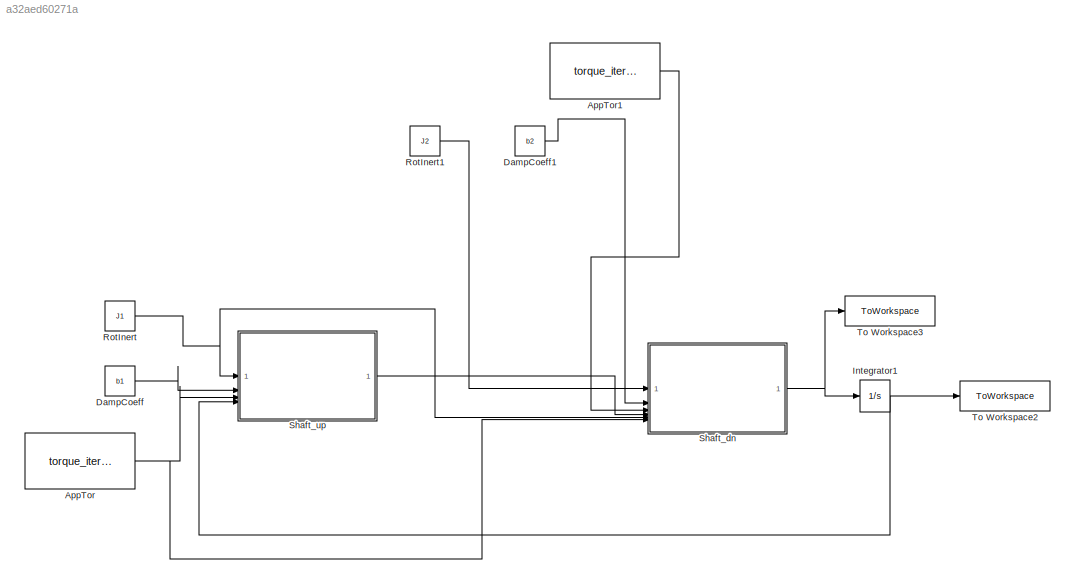
MODEL slx_a32aed60271a
KIND model
CONFIG AbsTol = auto
CONFIG EnableMultiTasking = off
CONFIG FixedStep = auto
CONFIG MaxStep = auto
CONFIG MinStep = auto
CONFIG RelTol = 1e-3
CONFIG SampleTimeConstraint = Unconstrained
CONFIG SolverName = VariableStepAuto
CONFIG StartTime = 0.0
CONFIG StopTime = 10.0
BLOCK [Constant] AppTor
  Value = torque_iteration
BLOCK [Constant] AppTor1
  Value = torque_iteration2
BLOCK [Constant] DampCoeff
  Value = b1
BLOCK [Constant] DampCoeff1
  Value = b2
BLOCK [Integrator] Integrator1
  LimitOutput = on
  UpperSaturationLimit = 10
BLOCK [Constant] RotInert
  SampleTime = -1
  Value = J1
BLOCK [Constant] RotInert1
  SampleTime = -1
  Value = J2
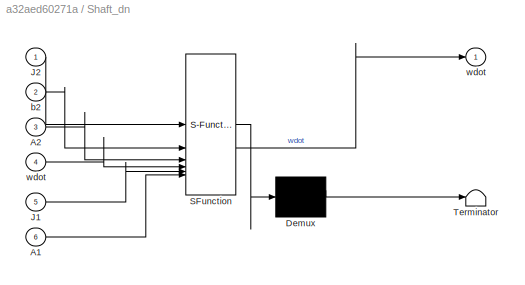
BLOCK [SubSystem] Shaft_dn
  ErrorFcn = Stateflow.Translate.translate
  PermitHierarchicalResolution = ExplicitOnly
  SFBlockType = MATLAB Function
  TreatAsAtomicUnit = on
BLOCK [Demux] Shaft_dn/ Demux 
  Outputs = 1
BLOCK [S-Function] Shaft_dn/ SFunction 
  EnableBusSupport = on
  FunctionName = sf_sfun
  PortCounts = [6 2]
  SFcnIsStateOwnerBlock = off
  SFunctionDeploymentMode = off
  Tag = Stateflow S-Function 1
BLOCK [Terminator] Shaft_dn/ Terminator 
BLOCK [Inport] Shaft_dn/A1
  Port = 6
BLOCK [Inport] Shaft_dn/A2
  Port = 3
BLOCK [Inport] Shaft_dn/J1
  Port = 5
BLOCK [Inport] Shaft_dn/J2
BLOCK [Inport] Shaft_dn/b2
  Port = 2
BLOCK [Outport] Shaft_dn/wdot
BLOCK [Inport] Shaft_dn/wdot 
  Port = 4
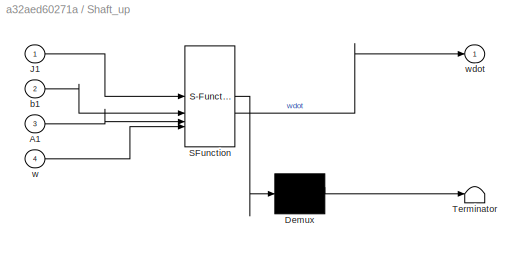
BLOCK [SubSystem] Shaft_up
  ErrorFcn = Stateflow.Translate.translate
  PermitHierarchicalResolution = ExplicitOnly
  SFBlockType = MATLAB Function
  TreatAsAtomicUnit = on
BLOCK [Demux] Shaft_up/ Demux 
  Outputs = 1
BLOCK [S-Function] Shaft_up/ SFunction 
  EnableBusSupport = on
  FunctionName = sf_sfun
  PortCounts = [4 2]
  SFcnIsStateOwnerBlock = off
  SFunctionDeploymentMode = off
  Tag = Stateflow S-Function 2
BLOCK [Terminator] Shaft_up/ Terminator 
BLOCK [Inport] Shaft_up/A1
  Port = 3
BLOCK [Inport] Shaft_up/J1
BLOCK [Inport] Shaft_up/b1
  Port = 2
BLOCK [Inport] Shaft_up/w
  Port = 4
BLOCK [Outport] Shaft_up/wdot
BLOCK [ToWorkspace] To Workspace2
  FixptAsFi = on
  MaxDataPoints = inf
  SampleTime = -1
  SaveFormat = Timeseries
  VariableName = w
BLOCK [ToWorkspace] To Workspace3
  FixptAsFi = on
  MaxDataPoints = inf
  SampleTime = -1
  SaveFormat = Timeseries
  VariableName = wdot
LINE AppTor1:1 -> Shaft_dn:3
NET AppTor:1 -> Shaft_dn:6, Shaft_up:3
LINE DampCoeff1:1 -> Shaft_dn:2
LINE DampCoeff:1 -> Shaft_up:2
NET Integrator1:1 -> Shaft_up:4, To Workspace2:1
LINE RotInert1:1 -> Shaft_dn:1
NET RotInert:1 -> Shaft_dn:5, Shaft_up:1
NET Shaft_dn:1 -> Integrator1:1, To Workspace3:1
LINE Shaft_up:1 -> Shaft_dn:4
note: NET lines group one-source signal fan-out (src -> all destinations, sorted); 1:1 wires keep LINE
CHART Shaft_dn states=1 transitions=1
  STATE_LABEL 'eML_blk_kernel()'
  STATE_LABEL 'SCRIPT:\nfunction wdot = fcn(J2, b2, A2, wdot, J1, A1)\n\nwdot = (A1 + J1*wdot - A2)/(J1+J2);\n\n\n'
CHART Shaft_up states=1 transitions=1
  STATE_LABEL 'eML_blk_kernel()'
  STATE_LABEL 'SCRIPT:\nfunction wdot = fcn(J1, b1, A1, w)\n\nwdot = (1 / J1) * (A1 - b1*w);\n\n'
CHART  states=0 transitions=0
CHART  states=0 transitions=0
